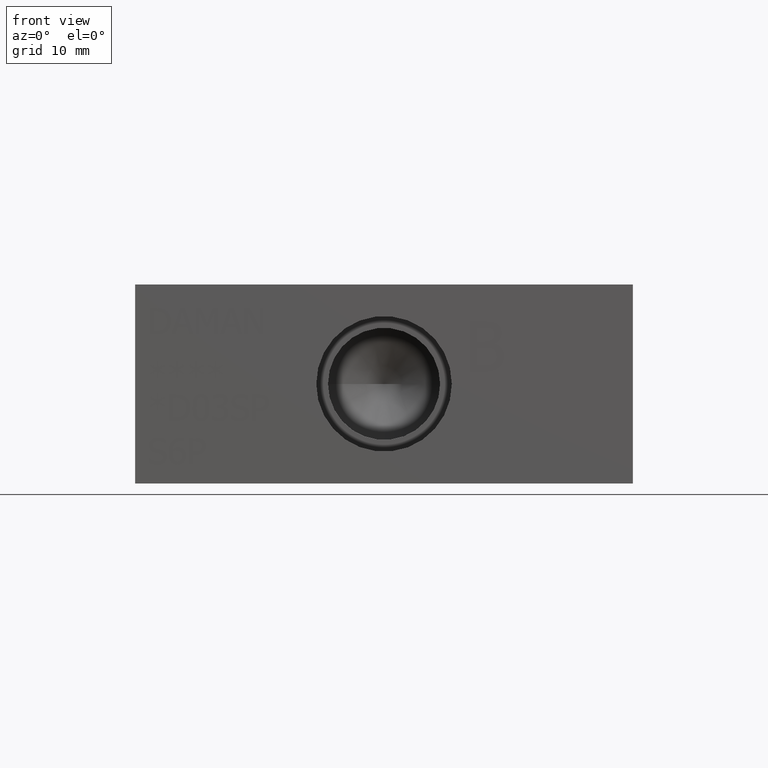
[diagram: clean part render]
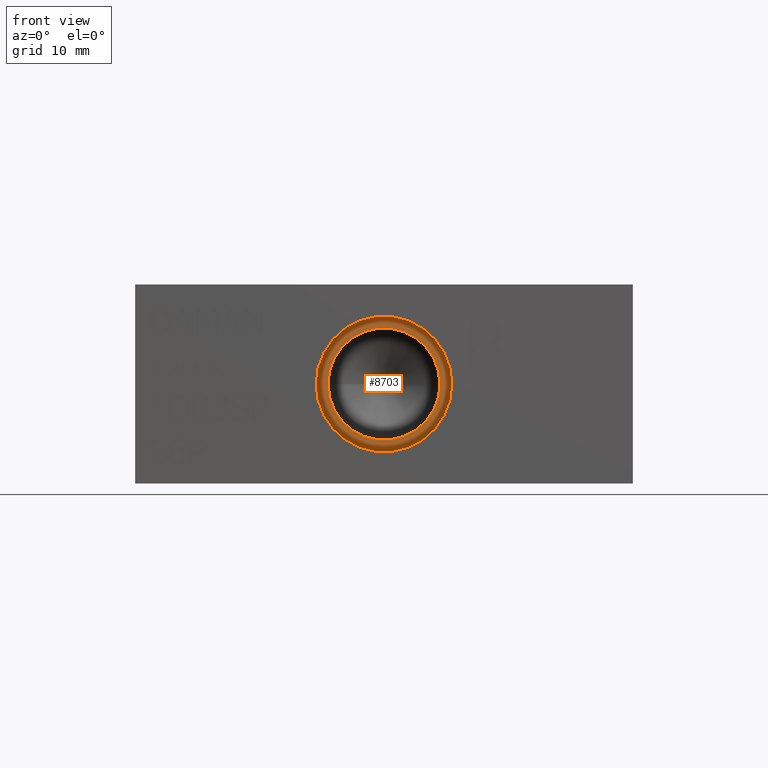
[diagram: same view with one face highlighted and labeled with its STEP entity id]
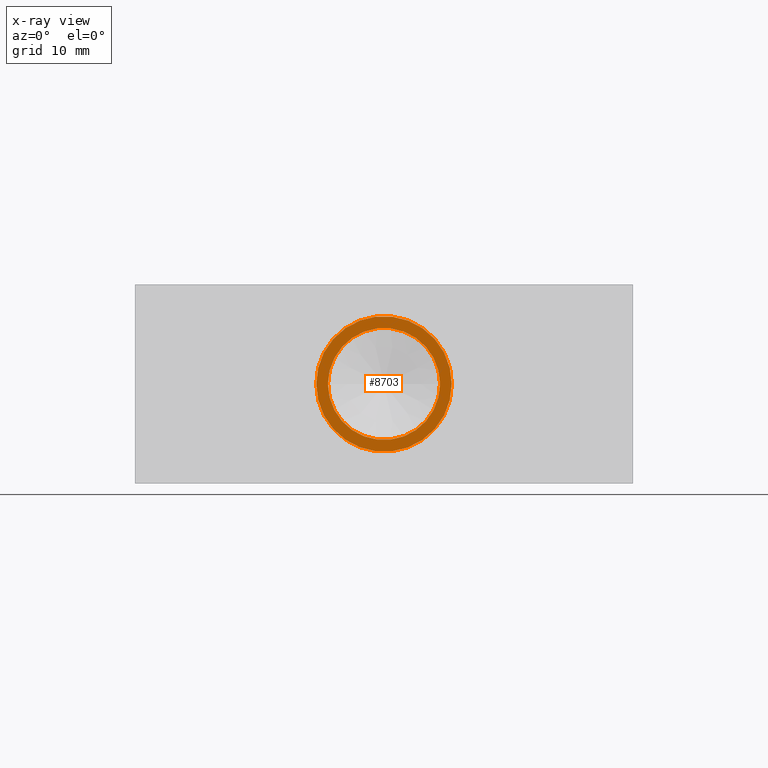
[diagram: x-ray of the same camera — body ghosted, the highlighted face saturated]
A machine part, front view. The second image highlights one B-rep face of the part: STEP entity #8703.
The next image is the same camera in x-ray: the body ghosted, the highlighted face saturated — about 0% of this face is hidden behind the body in this view.
In plain terms, the highlighted planar face has unit normal (0, -1, 0).
Its self-contained STEP definition (entity closure, byte-faithful):
#89=CIRCLE('',#9061,8.6487);
#90=CIRCLE('',#9062,8.6487);
#91=CIRCLE('',#9063,7.1501);
#181=FACE_BOUND('',#1360,.T.);
#458=PLANE('',#9060);
#876=FACE_OUTER_BOUND('',#1359,.T.);
#1359=EDGE_LOOP('',(#7584,#7585));
#1360=EDGE_LOOP('',(#7586));
#4123=VERTEX_POINT('',#14833);
#4124=VERTEX_POINT('',#14834);
#4125=VERTEX_POINT('',#14837);
#5306=EDGE_CURVE('',#4123,#4124,#89,.T.);
#5307=EDGE_CURVE('',#4124,#4123,#90,.T.);
#5308=EDGE_CURVE('',#4125,#4125,#91,.T.);
#7584=ORIENTED_EDGE('',*,*,#5306,.T.);
#7585=ORIENTED_EDGE('',*,*,#5307,.T.);
#7586=ORIENTED_EDGE('',*,*,#5308,.F.);
#8703=ADVANCED_FACE('',(#876,#181),#458,.T.);
#9060=AXIS2_PLACEMENT_3D('',#14832,#10578,#10579);
#9061=AXIS2_PLACEMENT_3D('',#14835,#10580,#10581);
#9062=AXIS2_PLACEMENT_3D('',#14836,#10582,#10583);
#9063=AXIS2_PLACEMENT_3D('',#14838,#10584,#10585);
#10578=DIRECTION('center_axis',(0.,-1.,0.));
#10579=DIRECTION('ref_axis',(1.,0.,0.));
#10580=DIRECTION('center_axis',(0.,-1.,0.));
#10581=DIRECTION('ref_axis',(1.,0.,0.));
#10582=DIRECTION('center_axis',(0.,-1.,0.));
#10583=DIRECTION('ref_axis',(1.,0.,0.));
#10584=DIRECTION('center_axis',(0.,-1.,0.));
#10585=DIRECTION('ref_axis',(1.,0.,0.));
#14832=CARTESIAN_POINT('Origin',(31.75,11.7348,12.7));
#14833=CARTESIAN_POINT('',(40.3987,11.7348,12.7));
#14834=CARTESIAN_POINT('',(23.1013,11.7348,12.7));
#14835=CARTESIAN_POINT('Origin',(31.75,11.7348,12.7));
#14836=CARTESIAN_POINT('Origin',(31.75,11.7348,12.7));
#14837=CARTESIAN_POINT('',(24.5999,11.7348,12.7));
#14838=CARTESIAN_POINT('Origin',(31.75,11.7348,12.7));